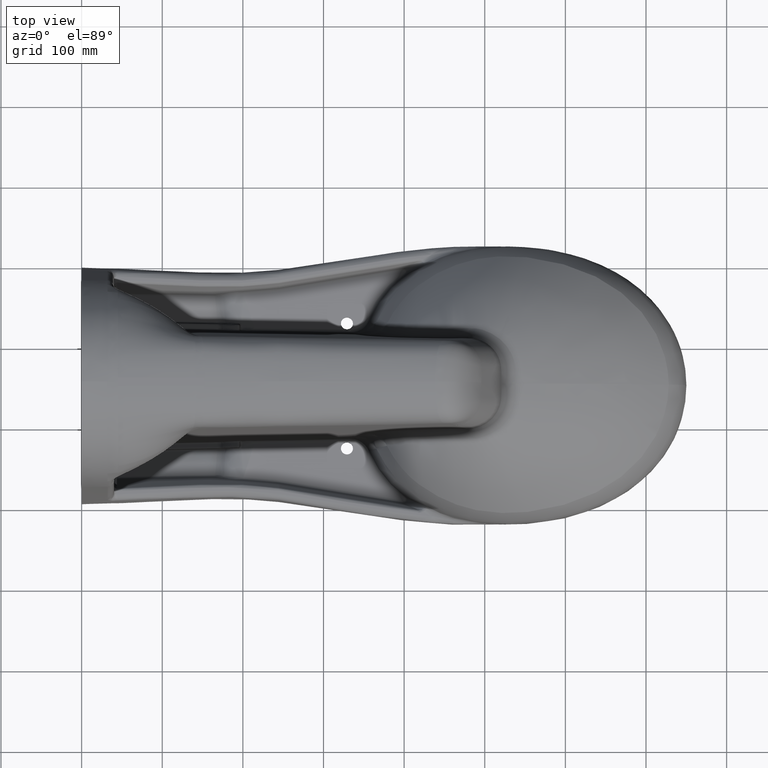
[diagram: clean part render]
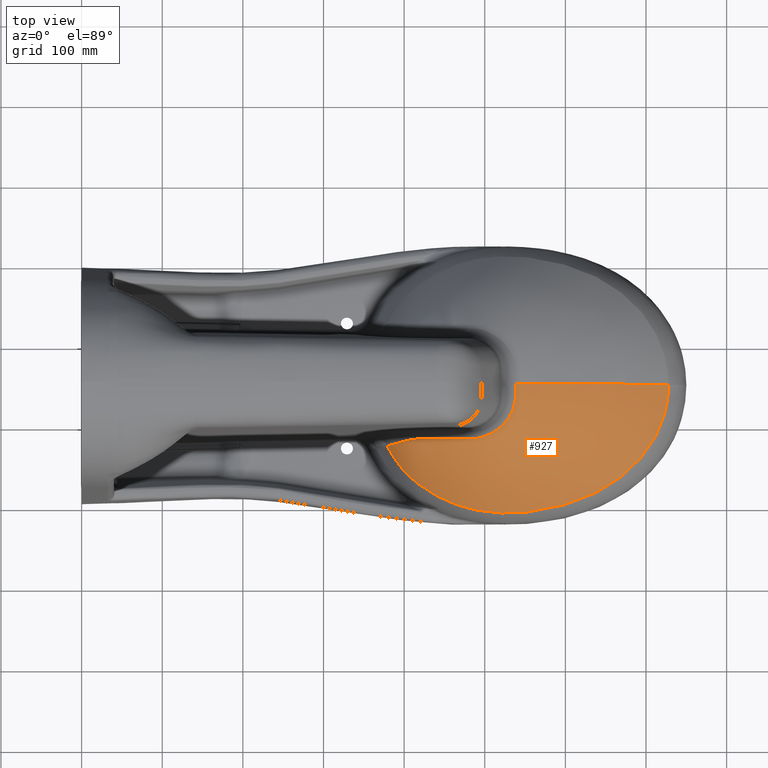
[diagram: same view with one face highlighted and labeled with its STEP entity id]
A machine part, top view. The second image highlights one B-rep face of the part: STEP entity #927.
In plain terms, the highlighted face is a freeform B-spline surface patch.
Its self-contained STEP definition (entity closure, byte-faithful):
#927=ADVANCED_FACE('',(#1509),#1158,.T.);
#1158=B_SPLINE_SURFACE_WITH_KNOTS('',3,3,((#45262,#45263,#45264,#45265,
#45266,#45267,#45268),(#45269,#45270,#45271,#45272,#45273,#45274,#45275),
(#45276,#45277,#45278,#45279,#45280,#45281,#45282),(#45283,#45284,#45285,
#45286,#45287,#45288,#45289),(#45290,#45291,#45292,#45293,#45294,#45295,
#45296),(#45297,#45298,#45299,#45300,#45301,#45302,#45303),(#45304,#45305,
#45306,#45307,#45308,#45309,#45310),(#45311,#45312,#45313,#45314,#45315,
#45316,#45317),(#45318,#45319,#45320,#45321,#45322,#45323,#45324),(#45325,
#45326,#45327,#45328,#45329,#45330,#45331),(#45332,#45333,#45334,#45335,
#45336,#45337,#45338),(#45339,#45340,#45341,#45342,#45343,#45344,#45345),
(#45346,#45347,#45348,#45349,#45350,#45351,#45352),(#45353,#45354,#45355,
#45356,#45357,#45358,#45359),(#45360,#45361,#45362,#45363,#45364,#45365,
#45366),(#45367,#45368,#45369,#45370,#45371,#45372,#45373),(#45374,#45375,
#45376,#45377,#45378,#45379,#45380),(#45381,#45382,#45383,#45384,#45385,
#45386,#45387),(#45388,#45389,#45390,#45391,#45392,#45393,#45394),(#45395,
#45396,#45397,#45398,#45399,#45400,#45401),(#45402,#45403,#45404,#45405,
#45406,#45407,#45408),(#45409,#45410,#45411,#45412,#45413,#45414,#45415),
(#45416,#45417,#45418,#45419,#45420,#45421,#45422),(#45423,#45424,#45425,
#45426,#45427,#45428,#45429),(#45430,#45431,#45432,#45433,#45434,#45435,
#45436),(#45437,#45438,#45439,#45440,#45441,#45442,#45443),(#45444,#45445,
#45446,#45447,#45448,#45449,#45450),(#45451,#45452,#45453,#45454,#45455,
#45456,#45457),(#45458,#45459,#45460,#45461,#45462,#45463,#45464),(#45465,
#45466,#45467,#45468,#45469,#45470,#45471),(#45472,#45473,#45474,#45475,
#45476,#45477,#45478),(#45479,#45480,#45481,#45482,#45483,#45484,#45485),
(#45486,#45487,#45488,#45489,#45490,#45491,#45492),(#45493,#45494,#45495,
#45496,#45497,#45498,#45499),(#45500,#45501,#45502,#45503,#45504,#45505,
#45506),(#45507,#45508,#45509,#45510,#45511,#45512,#45513),(#45514,#45515,
#45516,#45517,#45518,#45519,#45520),(#45521,#45522,#45523,#45524,#45525,
#45526,#45527),(#45528,#45529,#45530,#45531,#45532,#45533,#45534),(#45535,
#45536,#45537,#45538,#45539,#45540,#45541),(#45542,#45543,#45544,#45545,
#45546,#45547,#45548),(#45549,#45550,#45551,#45552,#45553,#45554,#45555),
(#45556,#45557,#45558,#45559,#45560,#45561,#45562),(#45563,#45564,#45565,
#45566,#45567,#45568,#45569),(#45570,#45571,#45572,#45573,#45574,#45575,
#45576),(#45577,#45578,#45579,#45580,#45581,#45582,#45583),(#45584,#45585,
#45586,#45587,#45588,#45589,#45590),(#45591,#45592,#45593,#45594,#45595,
#45596,#45597),(#45598,#45599,#45600,#45601,#45602,#45603,#45604),(#45605,
#45606,#45607,#45608,#45609,#45610,#45611),(#45612,#45613,#45614,#45615,
#45616,#45617,#45618),(#45619,#45620,#45621,#45622,#45623,#45624,#45625),
(#45626,#45627,#45628,#45629,#45630,#45631,#45632),(#45633,#45634,#45635,
#45636,#45637,#45638,#45639),(#45640,#45641,#45642,#45643,#45644,#45645,
#45646),(#45647,#45648,#45649,#45650,#45651,#45652,#45653),(#45654,#45655,
#45656,#45657,#45658,#45659,#45660),(#45661,#45662,#45663,#45664,#45665,
#45666,#45667),(#45668,#45669,#45670,#45671,#45672,#45673,#45674),(#45675,
#45676,#45677,#45678,#45679,#45680,#45681),(#45682,#45683,#45684,#45685,
#45686,#45687,#45688),(#45689,#45690,#45691,#45692,#45693,#45694,#45695),
(#45696,#45697,#45698,#45699,#45700,#45701,#45702),(#45703,#45704,#45705,
#45706,#45707,#45708,#45709),(#45710,#45711,#45712,#45713,#45714,#45715,
#45716),(#45717,#45718,#45719,#45720,#45721,#45722,#45723),(#45724,#45725,
#45726,#45727,#45728,#45729,#45730),(#45731,#45732,#45733,#45734,#45735,
#45736,#45737),(#45738,#45739,#45740,#45741,#45742,#45743,#45744),(#45745,
#45746,#45747,#45748,#45749,#45750,#45751),(#45752,#45753,#45754,#45755,
#45756,#45757,#45758),(#45759,#45760,#45761,#45762,#45763,#45764,#45765),
(#45766,#45767,#45768,#45769,#45770,#45771,#45772),(#45773,#45774,#45775,
#45776,#45777,#45778,#45779),(#45780,#45781,#45782,#45783,#45784,#45785,
#45786)),.UNSPECIFIED.,.F.,.F.,.F.,(4,1,1,1,1,1,1,1,1,1,1,1,1,1,1,1,1,1,
1,1,1,1,1,1,1,1,1,1,1,1,1,1,1,1,1,1,1,1,1,1,1,1,1,1,1,1,1,1,1,1,1,1,1,1,
1,1,1,1,1,1,1,1,1,1,1,1,1,1,1,1,1,1,4),(4,1,1,1,4),(0.,0.01171875,0.0234375,
0.046875,0.0703125,0.08203125,0.09375,0.1171875,0.12890625,0.134765625,
0.140625,0.1435546875,0.146484375,0.15234375,0.1640625,0.1875,0.2109375,
0.22265625,0.234375,0.25,0.2578125,0.28125,0.3046875,0.31640625,0.328125,
0.3515625,0.375,0.3984375,0.421875,0.4453125,0.462890625,0.46875,0.48046875,
0.4921875,0.498046875,0.5,0.50390625,0.515625,0.52734375,0.5390625,0.55078125,
0.5625,0.5859375,0.609375,0.6328125,0.65625,0.66796875,0.6796875,0.69140625,
0.703125,0.7265625,0.75,0.765625,0.78125,0.78515625,0.7890625,0.796875,
0.8125,0.84375,0.8515625,0.85546875,0.859375,0.861328125,0.8671875,0.875,
0.890625,0.90625,0.921875,0.9375,0.953125,0.96875,0.984375,1.),(0.,0.264705882352941,
0.509803921568627,0.754901960784314,1.),.UNSPECIFIED.);
#1509=FACE_OUTER_BOUND('',#1934,.T.);
#1934=EDGE_LOOP('',(#3543,#3544,#3545,#3546));
#3543=ORIENTED_EDGE('',*,*,#5205,.T.);
#3544=ORIENTED_EDGE('',*,*,#5504,.T.);
#3545=ORIENTED_EDGE('',*,*,#5508,.T.);
#3546=ORIENTED_EDGE('',*,*,#5518,.T.);
#4428=VERTEX_POINT('',#22494);
#4436=VERTEX_POINT('',#23260);
#4593=VERTEX_POINT('',#43614);
#4596=VERTEX_POINT('',#43935);
#5205=EDGE_CURVE('',#4436,#4428,#6105,.T.);
#5504=EDGE_CURVE('',#4428,#4593,#6316,.T.);
#5508=EDGE_CURVE('',#4593,#4596,#6319,.T.);
#5518=EDGE_CURVE('',#4596,#4436,#6328,.T.);
#6105=B_SPLINE_CURVE_WITH_KNOTS('',3,(#23635,#23636,#23637,#23638,#23639,
#23640,#23641),.UNSPECIFIED.,.F.,.F.,(4,1,1,1,4),(0.,0.161545937611615,
0.462555164888417,0.763564392165218,1.),.UNSPECIFIED.);
#6316=B_SPLINE_CURVE_WITH_KNOTS('',3,(#43615,#43616,#43617,#43618,#43619,
#43620,#43621,#43622,#43623,#43624,#43625,#43626,#43627,#43628,#43629,#43630,
#43631,#43632,#43633,#43634,#43635,#43636,#43637,#43638,#43639,#43640,#43641,
#43642,#43643,#43644,#43645,#43646,#43647,#43648,#43649,#43650,#43651,#43652,
#43653,#43654,#43655,#43656,#43657,#43658,#43659,#43660,#43661,#43662,#43663,
#43664,#43665,#43666,#43667,#43668,#43669,#43670,#43671,#43672,#43673,#43674,
#43675,#43676,#43677,#43678,#43679,#43680,#43681,#43682,#43683,#43684,#43685,
#43686,#43687,#43688,#43689,#43690,#43691,#43692,#43693,#43694,#43695,#43696,
#43697,#43698,#43699,#43700),.UNSPECIFIED.,.F.,.F.,(4,2,2,2,2,2,2,2,2,1,
2,2,2,2,2,2,1,2,2,2,2,2,2,2,2,2,2,2,2,1,1,1,2,2,2,2,2,2,2,2,2,2,1,2,2,4),
(0.,0.0625000000000183,0.0937500000000279,0.109375000000033,0.117187500000035,
0.125000000000037,0.187500000000052,0.21875000000006,0.234375000000064,
0.242187500000066,0.246093750000067,0.250000000000068,0.31250000000009,
0.3437500000001,0.359375000000106,0.367187500000108,0.37109375000011,0.37304687500011,
0.375000000000111,0.43750000000012,0.468750000000125,0.484375000000127,
0.492187500000128,0.500000000000129,0.562500000000142,0.593750000000149,
0.609375000000151,0.625000000000154,0.656250000000156,0.671875000000158,
0.67968750000016,0.683593750000163,0.685546875000164,0.687500000000165,
0.718750000000144,0.734375000000136,0.742187500000131,0.746093750000129,
0.750000000000127,0.812500000000099,0.843750000000086,0.859375000000078,
0.867187500000075,0.871093750000073,0.875000000000071,1.),.UNSPECIFIED.);
#6319=B_SPLINE_CURVE_WITH_KNOTS('',3,(#43936,#43937,#43938,#43939,#43940,
#43941,#43942,#43943,#43944,#43945,#43946,#43947,#43948,#43949,#43950,#43951,
#43952,#43953,#43954,#43955,#43956,#43957,#43958,#43959,#43960,#43961,#43962,
#43963,#43964,#43965,#43966,#43967,#43968,#43969,#43970,#43971,#43972,#43973,
#43974,#43975,#43976,#43977,#43978,#43979,#43980,#43981,#43982,#43983,#43984,
#43985,#43986,#43987,#43988,#43989,#43990,#43991,#43992,#43993,#43994,#43995,
#43996,#43997,#43998,#43999,#44000,#44001,#44002,#44003,#44004,#44005,#44006,
#44007),.UNSPECIFIED.,.F.,.F.,(4,2,2,2,1,1,2,2,2,2,2,1,1,2,2,2,2,2,2,2,
2,2,2,2,2,2,2,2,2,2,2,2,2,2,1,1,2,2,4),(0.,0.0625000000000084,0.0937500000000125,
0.109375000000014,0.117187500000014,0.121093750000014,0.123046875000014,
0.125000000000014,0.187500000000002,0.218749999999996,0.234374999999993,
0.242187499999991,0.246093749999991,0.248046874999991,0.24999999999999,
0.312499999999974,0.343749999999966,0.351562499999965,0.359374999999963,
0.37499999999996,0.437499999999953,0.468749999999949,0.484374999999946,
0.499999999999944,0.562499999999937,0.624999999999929,0.687499999999921,
0.718749999999918,0.734374999999916,0.742187499999915,0.749999999999915,
0.812499999999911,0.84374999999991,0.859374999999908,0.867187499999907,
0.871093749999908,0.873046874999909,0.87499999999991,1.),.UNSPECIFIED.);
#6328=B_SPLINE_CURVE_WITH_KNOTS('',3,(#44796,#44797,#44798,#44799,#44800,
#44801,#44802,#44803,#44804,#44805,#44806,#44807,#44808,#44809,#44810,#44811,
#44812,#44813,#44814,#44815,#44816,#44817,#44818,#44819,#44820,#44821,#44822,
#44823,#44824,#44825,#44826,#44827,#44828,#44829,#44830,#44831,#44832,#44833,
#44834,#44835,#44836,#44837,#44838,#44839,#44840,#44841,#44842,#44843,#44844,
#44845,#44846,#44847,#44848,#44849,#44850,#44851,#44852,#44853,#44854,#44855,
#44856,#44857,#44858,#44859,#44860,#44861,#44862,#44863,#44864,#44865,#44866,
#44867,#44868,#44869,#44870,#44871,#44872,#44873,#44874,#44875,#44876,#44877,
#44878,#44879,#44880,#44881,#44882,#44883,#44884,#44885,#44886,#44887,#44888,
#44889,#44890,#44891,#44892,#44893,#44894,#44895,#44896,#44897,#44898,#44899),
 .UNSPECIFIED.,.F.,.F.,(4,2,2,2,1,2,2,2,2,2,2,2,2,2,2,2,1,1,2,2,2,2,2,2,
1,1,2,2,2,2,2,2,1,2,2,2,2,2,2,1,1,1,2,2,2,2,2,2,2,1,2,2,2,2,2,2,4),(0.,
0.015624999999988,0.023437499999982,0.0273437499999789,0.0292968749999775,
0.0302734374999767,0.031249999999976,0.0468749999999618,0.0546874999999548,
0.0585937499999514,0.0605468749999496,0.0624999999999478,0.0937499999999171,
0.109374999999902,0.117187499999894,0.12109374999989,0.123046874999888,
0.124023437499887,0.124511718749887,0.124999999999886,0.156249999999852,
0.171874999999834,0.179687499999825,0.183593749999821,0.185546874999819,
0.186523437499818,0.187011718749817,0.187499999999817,0.218749999999791,
0.234374999999778,0.242187499999771,0.246093749999768,0.248046874999767,
0.249023437499766,0.249999999999765,0.312499999999739,0.343749999999726,
0.359374999999719,0.367187499999716,0.371093749999714,0.373046874999713,
0.374023437499713,0.374511718749713,0.374999999999713,0.437499999999752,
0.468749999999772,0.484374999999782,0.492187499999787,0.49609374999979,
0.498046874999791,0.499023437499792,0.499999999999793,0.624999999999845,
0.749999999999897,0.812499999999923,0.874999999999948,1.),.UNSPECIFIED.);
#22494=CARTESIAN_POINT('',(538.267688797543,153.525,195.697211263809));
#23260=CARTESIAN_POINT('',(728.012758415405,153.525,108.975013168029));
#23635=CARTESIAN_POINT('',(728.012389232513,153.524459950956,108.9745560275));
#23636=CARTESIAN_POINT('',(719.19235814967,153.524490135808,116.08706224505));
#23637=CARTESIAN_POINT('',(692.965951827557,153.52457917619,135.252651446628));
#23638=CARTESIAN_POINT('',(645.901551067401,153.524738229126,161.139103891217));
#23639=CARTESIAN_POINT('',(590.842450671173,153.524927761114,182.122076884891));
#23640=CARTESIAN_POINT('',(554.426782249626,153.525056022306,191.967185537663));
#23641=CARTESIAN_POINT('',(538.267688841407,153.525113482443,195.697211263815));
#43614=CARTESIAN_POINT('',(480.058245826521,84.9794481967518,189.225366084361));
#43615=CARTESIAN_POINT('',(538.267688797543,153.525,195.697211263809));
#43616=CARTESIAN_POINT('',(538.267563548294,150.894303522426,195.697004851268));
#43617=CARTESIAN_POINT('',(538.231043649266,148.513751834422,195.673658245534));
#43618=CARTESIAN_POINT('',(538.205433530636,145.280113651286,195.608510778653));
#43619=CARTESIAN_POINT('',(538.201766132594,144.258461294088,195.581740528477));
#43620=CARTESIAN_POINT('',(538.199423654271,142.8077418144,195.534352495731));
#43621=CARTESIAN_POINT('',(538.198947823471,142.337820430823,195.517349880091));
#43622=CARTESIAN_POINT('',(538.198300944168,141.653213104577,195.490070966557));
#43623=CARTESIAN_POINT('',(538.198102189762,141.428390285815,195.480682112324));
#43624=CARTESIAN_POINT('',(538.197760425938,140.985476062454,195.461317903711));
#43625=CARTESIAN_POINT('',(538.197639456234,140.738014342864,195.449938420066));
#43626=CARTESIAN_POINT('',(538.19810348305,139.069709988353,195.370180555016));
#43627=CARTESIAN_POINT('',(538.168744806013,137.280058455552,195.273294639005));
#43628=CARTESIAN_POINT('',(537.916290510936,134.10496650819,195.082593583233));
#43629=CARTESIAN_POINT('',(537.79729164446,132.964744414558,195.011432205926));
#43630=CARTESIAN_POINT('',(537.540020980277,131.129200208289,194.892169893084));
#43631=CARTESIAN_POINT('',(537.441010295757,130.496510715581,194.8503264887));
#43632=CARTESIAN_POINT('',(537.268595438545,129.516162189256,194.784262921705));
#43633=CARTESIAN_POINT('',(537.176408272029,129.018162149844,194.750406276797));
#43634=CARTESIAN_POINT('',(537.074453530743,128.508441722296,194.715279244672));
#43635=CARTESIAN_POINT('',(537.00422147241,128.166027772926,194.691575080671));
#43636=CARTESIAN_POINT('',(536.977868298079,128.039469261156,194.682789419671));
#43637=CARTESIAN_POINT('',(536.173460217934,124.303656157311,194.421845557233));
#43638=CARTESIAN_POINT('',(535.181500181746,121.51660901003,194.213771465424));
#43639=CARTESIAN_POINT('',(533.960714953408,118.488630682841,193.981947665508));
#43640=CARTESIAN_POINT('',(533.595531520477,117.669684562587,193.917955345584));
#43641=CARTESIAN_POINT('',(533.158588540564,116.725832092183,193.843794292512));
#43642=CARTESIAN_POINT('',(533.03118439413,116.458623862754,193.822703360288));
#43643=CARTESIAN_POINT('',(532.871409631089,116.128717649618,193.796668919653));
#43644=CARTESIAN_POINT('',(532.823359203767,116.030566249585,193.788923847974));
#43645=CARTESIAN_POINT('',(532.759462476319,115.901039880361,193.778720321963));
#43646=CARTESIAN_POINT('',(532.729557486698,115.840701916312,193.773972024545));
#43647=CARTESIAN_POINT('',(532.702774094779,115.786997523562,193.769756143118));
#43648=CARTESIAN_POINT('',(532.68561761479,115.752668292316,193.767064082342));
#43649=CARTESIAN_POINT('',(532.702355096121,115.785976807229,193.769667815709));
#43650=CARTESIAN_POINT('',(531.618549209755,113.626872223796,193.600777155173));
#43651=CARTESIAN_POINT('',(530.465662325186,111.689067642688,193.446447574234));
#43652=CARTESIAN_POINT('',(528.666902656054,109.026966682843,193.233085598043));
#43653=CARTESIAN_POINT('',(528.055759727626,108.18014150105,193.164993966857));
#43654=CARTESIAN_POINT('',(527.131192172588,106.970726050557,193.067731901672));
#43655=CARTESIAN_POINT('',(526.821685410954,106.577717390221,193.036122510606));
#43656=CARTESIAN_POINT('',(526.356584245806,106.003331501314,192.989964713485));
#43657=CARTESIAN_POINT('',(526.201410069038,105.814390261813,192.974788171402));
#43658=CARTESIAN_POINT('',(525.890966384557,105.441532838164,192.944860504509));
#43659=CARTESIAN_POINT('',(525.769063808658,105.296612812736,192.933233805115));
#43660=CARTESIAN_POINT('',(524.071730223043,103.312926798285,192.774298244228));
#43661=CARTESIAN_POINT('',(522.496336700445,101.70376071404,192.646700625008));
#43662=CARTESIAN_POINT('',(520.101206285469,99.5186674667613,192.479747347503));
#43663=CARTESIAN_POINT('',(519.297474763173,98.8285720057941,192.428296931188));
#43664=CARTESIAN_POINT('',(518.091812936963,97.8503390089841,192.358196832612));
#43665=CARTESIAN_POINT('',(517.689910855585,97.5337343713493,192.336009890275));
#43666=CARTESIAN_POINT('',(516.887376682812,96.9192121922476,192.294172004365));
#43667=CARTESIAN_POINT('',(516.512388487192,96.6398333085534,192.275696643617));
#43668=CARTESIAN_POINT('',(515.237332575071,95.7180521193933,192.217240892237));
#43669=CARTESIAN_POINT('',(514.364470184211,95.1161806669859,192.18043111426));
#43670=CARTESIAN_POINT('',(513.019996884422,94.2359773543205,192.127629804332));
#43671=CARTESIAN_POINT('',(512.338751356845,93.8019180097844,192.101527266591));
#43672=CARTESIAN_POINT('',(511.526990573204,93.3087066700763,192.069990610482));
#43673=CARTESIAN_POINT('',(511.116714620075,93.0657260781237,192.053750269287));
#43674=CARTESIAN_POINT('',(510.939923855084,92.9624034127271,192.046667419688));
#43675=CARTESIAN_POINT('',(510.821848594256,92.8937059495697,192.041915856021));
#43676=CARTESIAN_POINT('',(510.729696865071,92.8404193566403,192.038184634131));
#43677=CARTESIAN_POINT('',(510.283505251266,92.5831676927564,192.020062019931));
#43678=CARTESIAN_POINT('',(509.622180767151,92.1880203846278,191.985546985757));
#43679=CARTESIAN_POINT('',(508.220255691474,91.4081403584671,191.893897761703));
#43680=CARTESIAN_POINT('',(507.684286416531,91.1173320289523,191.856576851539));
#43681=CARTESIAN_POINT('',(506.768720892924,90.6438408871291,191.787149112569));
#43682=CARTESIAN_POINT('',(506.444913790545,90.4798268926966,191.761751708097));
#43683=CARTESIAN_POINT('',(505.930065248786,90.2259445922736,191.719719585841));
#43684=CARTESIAN_POINT('',(505.753591928826,90.140009086915,191.705051783746));
#43685=CARTESIAN_POINT('',(505.390720273539,89.9657845153413,191.674295714313));
#43686=CARTESIAN_POINT('',(505.168710897408,89.8608819755783,191.655072319352));
#43687=CARTESIAN_POINT('',(502.519127458685,88.6247840978773,191.421806236281));
#43688=CARTESIAN_POINT('',(500.186956117858,87.7933104191172,191.177679658557));
#43689=CARTESIAN_POINT('',(497.111638501027,86.8616172902206,190.845088416341));
#43690=CARTESIAN_POINT('',(496.155853538371,86.6044654190912,190.739473711625));
#43691=CARTESIAN_POINT('',(494.839979271753,86.2829753631407,190.594806755468));
#43692=CARTESIAN_POINT('',(494.420937263399,86.1865621638673,190.548858759078));
#43693=CARTESIAN_POINT('',(493.823062932617,86.0564521720116,190.483933241744));
#43694=CARTESIAN_POINT('',(493.531794010406,85.9950282776929,190.452468146641));
#43695=CARTESIAN_POINT('',(493.252240374194,85.9387800953688,190.42259663311));
#43696=CARTESIAN_POINT('',(493.068496171982,85.9024034867009,190.403046380639));
#43697=CARTESIAN_POINT('',(493.029924967362,85.8947267680614,190.398933255913));
#43698=CARTESIAN_POINT('',(488.369501239512,85.002718227445,189.907694219803));
#43699=CARTESIAN_POINT('',(484.030327912187,84.7835265576179,189.49880873562));
#43700=CARTESIAN_POINT('',(480.058245826521,84.9794481967516,189.225366084361));
#43935=CARTESIAN_POINT('',(378.583138586521,77.6332408042855,108.974891583055));
#43936=CARTESIAN_POINT('',(480.058245826521,84.9794481967516,189.225366084361));
#43937=CARTESIAN_POINT('',(477.373143487674,85.0424762961724,188.998911814384));
#43938=CARTESIAN_POINT('',(474.614717210787,85.0964463674113,188.687649543999));
#43939=CARTESIAN_POINT('',(470.339927393752,85.1695824266998,188.075703345651));
#43940=CARTESIAN_POINT('',(468.892198997063,85.1928123174733,187.847659557267));
#43941=CARTESIAN_POINT('',(466.684317423052,85.2253017630704,187.465405410919));
#43942=CARTESIAN_POINT('',(465.942317207027,85.2357336435426,187.331281260915));
#43943=CARTESIAN_POINT('',(464.8200662951,85.2506882291061,187.119489792814));
#43944=CARTESIAN_POINT('',(464.256628913973,85.2579921381661,187.010942542574));
#43945=CARTESIAN_POINT('',(463.595205406185,85.2661879315646,186.879542398632));
#43946=CARTESIAN_POINT('',(463.310860785788,85.2696282487768,186.822194543653));
#43947=CARTESIAN_POINT('',(463.121102392481,85.2719054843486,186.783731508213));
#43948=CARTESIAN_POINT('',(462.97961603642,85.2735849018951,186.75486314823));
#43949=CARTESIAN_POINT('',(461.376965419183,85.2925010744222,186.426773635998));
#43950=CARTESIAN_POINT('',(459.224946957705,85.3051455777849,185.966729013855));
#43951=CARTESIAN_POINT('',(455.066667942458,85.2996793281842,184.848634969035));
#43952=CARTESIAN_POINT('',(453.525564609139,85.2932079701966,184.402996312247));
#43953=CARTESIAN_POINT('',(450.977647920866,85.280186971238,183.607141571046));
#43954=CARTESIAN_POINT('',(450.088982930357,85.275307567245,183.320649156174));
#43955=CARTESIAN_POINT('',(448.69664184603,85.2675086616319,182.856278607262));
#43956=CARTESIAN_POINT('',(447.985637954152,85.2634895012444,182.615436283158));
#43957=CARTESIAN_POINT('',(447.130138787882,85.25866491343,182.318702336969));
#43958=CARTESIAN_POINT('',(446.75792432224,85.2565761848556,182.188092388873));
#43959=CARTESIAN_POINT('',(446.50854301355,85.2551799109491,182.100248092757));
#43960=CARTESIAN_POINT('',(446.34687181206,85.2542773308773,182.043034522486));
#43961=CARTESIAN_POINT('',(443.391139531383,85.2378126002841,180.993942135252));
#43962=CARTESIAN_POINT('',(440.637017986191,85.2228617163023,179.930481022373));
#43963=CARTESIAN_POINT('',(436.693701757333,85.1999332341211,178.310188625128));
#43964=CARTESIAN_POINT('',(435.410592808574,85.1922379317031,177.765501282064));
#43965=CARTESIAN_POINT('',(433.84746667655,85.1824180932989,177.082254327291));
#43966=CARTESIAN_POINT('',(433.606635921295,85.1808605514074,176.976715639628));
#43967=CARTESIAN_POINT('',(432.636788650893,85.174716665627,176.545909733059));
#43968=CARTESIAN_POINT('',(432.160558844559,85.1717817727173,176.332024323802));
#43969=CARTESIAN_POINT('',(430.758093549989,85.1633221948329,175.695649544874));
#43970=CARTESIAN_POINT('',(429.858093284038,85.1581419654246,175.278452797112));
#43971=CARTESIAN_POINT('',(425.534140414265,85.1336959968283,173.236765776563));
#43972=CARTESIAN_POINT('',(422.640386357526,85.1185636882991,171.748481886146));
#43973=CARTESIAN_POINT('',(419.138752758587,85.0889433436038,169.866279860537));
#43974=CARTESIAN_POINT('',(418.110934274561,85.0779782863793,169.296584529698));
#43975=CARTESIAN_POINT('',(416.775247990837,85.0585358894525,168.539639771254));
#43976=CARTESIAN_POINT('',(416.364422064351,85.051549789032,168.303452104198));
#43977=CARTESIAN_POINT('',(415.61131350852,85.0363323509074,167.864377867848));
#43978=CARTESIAN_POINT('',(415.299894484497,85.0289977940309,167.680091909102));
#43979=CARTESIAN_POINT('',(413.604044777136,84.9797995745976,166.659290103186));
#43980=CARTESIAN_POINT('',(412.005238011151,84.8232648610242,165.589421114444));
#43981=CARTESIAN_POINT('',(408.53063228643,84.3049390703475,162.68846350128));
#43982=CARTESIAN_POINT('',(406.652722376497,83.9432215116882,160.85945039215));
#43983=CARTESIAN_POINT('',(402.805254567771,83.0833667551271,156.394760082382));
#43984=CARTESIAN_POINT('',(400.843941999992,82.5848935738705,153.757926376582));
#43985=CARTESIAN_POINT('',(397.930561892773,81.8156550667767,149.262417575628));
#43986=CARTESIAN_POINT('',(396.963834787231,81.5560116328155,147.675686579698));
#43987=CARTESIAN_POINT('',(395.523391661722,81.1752270235024,145.182777754059));
#43988=CARTESIAN_POINT('',(395.044716125942,81.0497656314706,144.332940195794));
#43989=CARTESIAN_POINT('',(394.328432223317,80.8656937828722,143.03256294412));
#43990=CARTESIAN_POINT('',(394.089954639172,80.8050250212282,142.594838880717));
#43991=CARTESIAN_POINT('',(393.613431277878,80.685407117094,141.711370600437));
#43992=CARTESIAN_POINT('',(393.361929447295,80.6231826747366,141.240204821212));
#43993=CARTESIAN_POINT('',(391.341781551518,80.1314686855798,137.423696264192));
#43994=CARTESIAN_POINT('',(389.864944648847,79.8099181110687,134.418157158435));
#43995=CARTESIAN_POINT('',(387.973200825838,79.4329811853619,130.501592043078));
#43996=CARTESIAN_POINT('',(387.398340515938,79.3247914810483,129.293235836119));
#43997=CARTESIAN_POINT('',(386.610394629991,79.1797368046418,127.621207838896));
#43998=CARTESIAN_POINT('',(386.360152087041,79.1342567225486,127.087274287924));
#43999=CARTESIAN_POINT('',(386.002832090758,79.0692195645766,126.320569523736));
#44000=CARTESIAN_POINT('',(385.828693292472,79.037496647384,125.945761586474));
#44001=CARTESIAN_POINT('',(385.633354156495,79.0016348114839,125.523225425466));
#44002=CARTESIAN_POINT('',(385.551304316451,78.9864855466574,125.345274408642));
#44003=CARTESIAN_POINT('',(385.496973817663,78.9764320693423,125.227334761154));
#44004=CARTESIAN_POINT('',(385.48930671375,78.9750192189694,125.210714981545));
#44005=CARTESIAN_POINT('',(382.492168496404,78.4177732524741,118.692542738262));
#44006=CARTESIAN_POINT('',(380.29290168084,77.9320931621553,113.306817642225));
#44007=CARTESIAN_POINT('',(378.586312415308,77.6261564494379,108.974995312655));
#44796=CARTESIAN_POINT('',(378.582806294267,77.633072119355,108.974990711691));
#44797=CARTESIAN_POINT('',(379.553257778124,75.7187444547969,108.976258395767));
#44798=CARTESIAN_POINT('',(380.646058495902,73.6908665795301,108.981161695203));
#44799=CARTESIAN_POINT('',(382.472688259343,70.5159317081523,108.980609332722));
#44800=CARTESIAN_POINT('',(383.112699270849,69.4357725318441,108.979391820429));
#44801=CARTESIAN_POINT('',(384.118863867905,67.7898254847572,108.977155141194));
#44802=CARTESIAN_POINT('',(384.461929533595,67.2369054244792,108.976363184551));
#44803=CARTESIAN_POINT('',(384.987876701113,66.4020951048529,108.975451179913));
#44804=CARTESIAN_POINT('',(385.25368715418,65.9833332796986,108.975066019209));
#44805=CARTESIAN_POINT('',(385.523719078401,65.5627265487288,108.974868862155));
#44806=CARTESIAN_POINT('',(385.704674561557,65.2819336056156,108.974789468472));
#44807=CARTESIAN_POINT('',(385.818149672676,65.1066455978562,108.974780071983));
#44808=CARTESIAN_POINT('',(386.989104937726,63.3033388774868,108.975005149178));
#44809=CARTESIAN_POINT('',(388.183767945588,61.5396976404664,108.977570644018));
#44810=CARTESIAN_POINT('',(390.113682624619,58.8156489105222,108.979971993956));
#44811=CARTESIAN_POINT('',(390.779856591603,57.8945707720925,108.980661639622));
#44812=CARTESIAN_POINT('',(391.814849223132,56.496310020022,108.981099983035));
#44813=CARTESIAN_POINT('',(392.165806227987,56.0274500939434,108.981151353825));
#44814=CARTESIAN_POINT('',(392.701386146036,55.3203688368824,108.98108050322));
#44815=CARTESIAN_POINT('',(392.881437018276,55.0840431416299,108.981032587477));
#44816=CARTESIAN_POINT('',(393.244623493293,54.6101883101372,108.980891461362));
#44817=CARTESIAN_POINT('',(393.44569808553,54.349533211604,108.980787297492));
#44818=CARTESIAN_POINT('',(396.280581291806,50.6949562949552,108.979056456831));
#44819=CARTESIAN_POINT('',(399.258515734084,47.1414482159737,108.975616027343));
#44820=CARTESIAN_POINT('',(404.386777832122,41.7597658104278,108.980541911403));
#44821=CARTESIAN_POINT('',(406.208066126108,39.9569087586678,108.983731749163));
#44822=CARTESIAN_POINT('',(409.149923707167,37.2492574375724,108.986821855979));
#44823=CARTESIAN_POINT('',(410.165945158679,36.3460440200008,108.987632562309));
#44824=CARTESIAN_POINT('',(411.747696081452,34.9912673297281,108.987376287432));
#44825=CARTESIAN_POINT('',(412.284560167558,34.5396802080655,108.987038664016));
#44826=CARTESIAN_POINT('',(413.104948527153,33.8624154325956,108.985964443246));
#44827=CARTESIAN_POINT('',(413.518919038191,33.5238126607147,108.98528526366));
#44828=CARTESIAN_POINT('',(414.008664072553,33.1288526668053,108.984198184474));
#44829=CARTESIAN_POINT('',(414.220026839618,32.9596029315822,108.983663716209));
#44830=CARTESIAN_POINT('',(414.361264642909,32.8467742229905,108.983291545241));
#44831=CARTESIAN_POINT('',(414.461517234585,32.7669320865739,108.983013522489));
#44832=CARTESIAN_POINT('',(417.157733051144,30.6232470290589,108.975327254087));
#44833=CARTESIAN_POINT('',(420.360313675497,28.2375992544127,108.947462741449));
#44834=CARTESIAN_POINT('',(426.165913353298,24.2681230215682,108.95517047772));
#44835=CARTESIAN_POINT('',(428.273669942086,22.8790806086161,108.960749624669));
#44836=CARTESIAN_POINT('',(431.752672543457,20.7027751077483,108.967796665751));
#44837=CARTESIAN_POINT('',(432.965439675482,19.9619030952064,108.969929398226));
#44838=CARTESIAN_POINT('',(434.873619472961,18.8283909863359,108.972110270042));
#44839=CARTESIAN_POINT('',(435.524533101495,18.4468543110381,108.972667769706));
#44840=CARTESIAN_POINT('',(436.524503490162,17.8691319306788,108.973165301148));
#44841=CARTESIAN_POINT('',(437.03039026106,17.5789165333865,108.973329409977));
#44842=CARTESIAN_POINT('',(437.631225085616,17.2379922670102,108.973354466239));
#44843=CARTESIAN_POINT('',(437.891038250479,17.0913838483763,108.973327605744));
#44844=CARTESIAN_POINT('',(438.064764720189,16.993534604572,108.973301128179));
#44845=CARTESIAN_POINT('',(438.187617265925,16.9245047420102,108.973274642377));
#44846=CARTESIAN_POINT('',(441.545021427863,15.0405030637271,108.972432558827));
#44847=CARTESIAN_POINT('',(445.154827696532,13.1461020854681,108.975015852162));
#44848=CARTESIAN_POINT('',(451.176402104104,10.2910604540342,108.978400983927));
#44849=CARTESIAN_POINT('',(453.285232613043,9.33748050457092,108.979588430862));
#44850=CARTESIAN_POINT('',(456.623766439629,7.91355316654925,108.978658195752));
#44851=CARTESIAN_POINT('',(457.765831139721,7.43995394343371,108.977768879878));
#44852=CARTESIAN_POINT('',(459.52604752867,6.73298423592531,108.975969606003));
#44853=CARTESIAN_POINT('',(460.120665564862,6.49788878057921,108.975285882985));
#44854=CARTESIAN_POINT('',(461.024599744457,6.14654409572013,108.974389470751));
#44855=CARTESIAN_POINT('',(461.479566855146,5.97119806365697,108.973974961686));
#44856=CARTESIAN_POINT('',(461.939064949447,5.79643323053647,108.973663111611));
#44857=CARTESIAN_POINT('',(462.246407327003,5.68006288087829,108.973483900104));
#44858=CARTESIAN_POINT('',(462.444843883349,5.60533998756848,108.973391847521));
#44859=CARTESIAN_POINT('',(469.622344140771,2.91214338762324,108.97061735145));
#44860=CARTESIAN_POINT('',(477.926522159814,0.306075343935033,108.962505760987));
#44861=CARTESIAN_POINT('',(492.639020998902,-2.77887638046711,108.9631042332));
#44862=CARTESIAN_POINT('',(497.918920597232,-3.6657479089791,108.965416091448));
#44863=CARTESIAN_POINT('',(506.421253030733,-4.68254235038532,108.969434166191));
#44864=CARTESIAN_POINT('',(509.352308642802,-4.96900135562316,108.970859789123));
#44865=CARTESIAN_POINT('',(513.89528942544,-5.30537769107,108.972739628587));
#44866=CARTESIAN_POINT('',(515.433992524903,-5.40197283223393,108.973319349933));
#44867=CARTESIAN_POINT('',(517.778512409559,-5.52196620392589,108.974034332512));
#44868=CARTESIAN_POINT('',(518.959887518455,-5.57573712291586,108.974353107936));
#44869=CARTESIAN_POINT('',(520.354076051292,-5.62721396136349,108.974638122611));
#44870=CARTESIAN_POINT('',(521.055144525198,-5.65009255138456,108.974756462029));
#44871=CARTESIAN_POINT('',(521.356453479665,-5.65927990959195,108.974801736778));
#44872=CARTESIAN_POINT('',(521.557515168438,-5.66526698691429,108.974830681178));
#44873=CARTESIAN_POINT('',(521.707078418391,-5.66957901359919,108.97485095672));
#44874=CARTESIAN_POINT('',(528.386954313196,-5.85895528579225,108.975727638786));
#44875=CARTESIAN_POINT('',(536.435325782579,-5.78186899877983,108.983141335716));
#44876=CARTESIAN_POINT('',(550.878825502299,-4.61657648876868,108.981262353928));
#44877=CARTESIAN_POINT('',(556.086062507233,-4.05015547712382,108.978389199239));
#44878=CARTESIAN_POINT('',(564.511395284107,-2.84496260962997,108.975486192224));
#44879=CARTESIAN_POINT('',(567.422445008062,-2.38424541326809,108.974984494434));
#44880=CARTESIAN_POINT('',(571.944054997685,-1.59103599223855,108.974782051585));
#44881=CARTESIAN_POINT('',(573.477075220413,-1.30958310036977,108.974796022635));
#44882=CARTESIAN_POINT('',(575.815329172266,-0.859974498607408,108.974888924652));
#44883=CARTESIAN_POINT('',(576.601200230317,-0.705532648747712,108.974931821663));
#44884=CARTESIAN_POINT('',(577.789678151066,-0.466772534517731,108.975007219547));
#44885=CARTESIAN_POINT('',(578.386335084158,-0.345619590109264,108.975047649145));
#44886=CARTESIAN_POINT('',(578.98661431778,-0.221746279896633,108.975091108584));
#44887=CARTESIAN_POINT('',(579.387604784556,-0.138552241823297,108.975120640726));
#44888=CARTESIAN_POINT('',(579.640018959571,-0.0858463194305785,108.975139592332));
#44889=CARTESIAN_POINT('',(598.961957284738,3.96595212110746,108.976604796004));
#44890=CARTESIAN_POINT('',(618.218618498041,10.0496584917468,108.981834427898));
#44891=CARTESIAN_POINT('',(654.249390149983,27.6295611382241,108.988181641926));
#44892=CARTESIAN_POINT('',(670.9404374998,39.220748396403,108.989529243806));
#44893=CARTESIAN_POINT('',(691.845908482742,60.1215752533767,108.98799979233));
#44894=CARTESIAN_POINT('',(698.125843159661,67.6527720389977,108.986968378423));
#44895=CARTESIAN_POINT('',(708.986467577071,83.5968597933485,108.984308638156));
#44896=CARTESIAN_POINT('',(713.546139698442,92.014360882155,108.9826835354));
#44897=CARTESIAN_POINT('',(724.406093024742,117.96047441245,108.977880355269));
#44898=CARTESIAN_POINT('',(727.994666316428,136.124653459142,108.974771235384));
#44899=CARTESIAN_POINT('',(728.012115568195,153.525000644734,108.974777149609));
#45262=CARTESIAN_POINT('',(366.2049053656,216.029987631569,89.6953540145067));
#45263=CARTESIAN_POINT('',(366.2049053656,216.029987631569,89.6953540145067));
#45264=CARTESIAN_POINT('',(366.2049053656,216.029987631569,89.6953540145067));
#45265=CARTESIAN_POINT('',(366.2049053656,216.029987631569,89.6953540145067));
#45266=CARTESIAN_POINT('',(366.2049053656,216.029987631569,89.6953540145067));
#45267=CARTESIAN_POINT('',(366.2049053656,216.029987631569,89.6953540145067));
#45268=CARTESIAN_POINT('',(366.2049053656,216.029987631569,89.6953540145067));
#45269=CARTESIAN_POINT('',(366.927048666105,215.849482927535,92.1283685262694));
#45270=CARTESIAN_POINT('',(366.92512834585,216.138713347238,91.9465633585724));
#45271=CARTESIAN_POINT('',(366.930238499447,216.684376263098,91.5777830309155));
#45272=CARTESIAN_POINT('',(366.958297548513,217.45472128773,90.9760921884028));
#45273=CARTESIAN_POINT('',(366.999791639612,218.164966697291,90.3319650956671));
#45274=CARTESIAN_POINT('',(367.03061673053,218.613774075089,89.8656412964504));
#45275=CARTESIAN_POINT('',(367.045190341936,218.831875572033,89.623619662481));
#45276=CARTESIAN_POINT('',(368.397151395465,215.489739789945,96.953387278595));
#45277=CARTESIAN_POINT('',(368.4271354662,216.355193391498,96.425205384885));
#45278=CARTESIAN_POINT('',(368.510051554543,217.986571776072,95.3505179237018));
#45279=CARTESIAN_POINT('',(368.692374333396,220.282955356869,93.5888749943657));
#45280=CARTESIAN_POINT('',(368.91266577805,222.391352924759,91.69845923253));
#45281=CARTESIAN_POINT('',(369.071339082868,223.715762548217,90.3289302177085));
#45282=CARTESIAN_POINT('',(369.149320789611,224.357185988394,89.6184057077655));
#45283=CARTESIAN_POINT('',(371.516023789581,214.770816421871,106.544878891313));
#45284=CARTESIAN_POINT('',(371.661355346266,216.776376191494,105.335742240002));
#45285=CARTESIAN_POINT('',(371.994311973807,220.550863084191,102.86637765187));
#45286=CARTESIAN_POINT('',(372.617066673933,225.834852051327,98.7974592554236));
#45287=CARTESIAN_POINT('',(373.323141710899,230.647963898708,94.425173372951));
#45288=CARTESIAN_POINT('',(373.83053311912,233.636919233517,91.2612792717037));
#45289=CARTESIAN_POINT('',(374.085791690912,235.074913229777,89.6226399882912));
#45290=CARTESIAN_POINT('',(375.861917117926,213.871299856224,118.602789360176));
#45291=CARTESIAN_POINT('',(376.207462878071,217.243142062813,116.545130233871));
#45292=CARTESIAN_POINT('',(376.952187965957,223.575843851503,112.328143313474));
#45293=CARTESIAN_POINT('',(378.257189582498,232.378735044779,105.346810736755));
#45294=CARTESIAN_POINT('',(379.696098761903,240.315269916029,97.841147725079));
#45295=CARTESIAN_POINT('',(380.734043920876,245.170666028276,92.4210159898711));
#45296=CARTESIAN_POINT('',(381.264324598198,247.486023729929,89.620204745347));
#45297=CARTESIAN_POINT('',(381.108322486251,212.964527744226,131.225477353306));
#45298=CARTESIAN_POINT('',(381.599649130407,217.533414422117,128.280597030608));
#45299=CARTESIAN_POINT('',(382.640697232875,226.091854064428,122.231708192768));
#45300=CARTESIAN_POINT('',(384.435764215031,237.88631347356,112.188947274157));
#45301=CARTESIAN_POINT('',(386.411039542198,248.386737109888,101.398909972684));
#45302=CARTESIAN_POINT('',(387.854426441979,254.693165690649,93.6269866697826));
#45303=CARTESIAN_POINT('',(388.601815890865,257.666987409884,89.6203335416092));
#45304=CARTESIAN_POINT('',(385.956954212893,212.23742990857,141.444160707993));
#45305=CARTESIAN_POINT('',(386.51280075139,217.688201080954,137.784450037499));
#45306=CARTESIAN_POINT('',(387.684777407417,227.879358902314,130.256144766624));
#45307=CARTESIAN_POINT('',(389.701431973736,241.835628930806,117.732197933599));
#45308=CARTESIAN_POINT('',(391.930774479655,254.144626822799,104.279190225305));
#45309=CARTESIAN_POINT('',(393.58013518015,261.433403492899,94.6023899918459));
#45310=CARTESIAN_POINT('',(394.442714684754,264.840305890513,89.6205802567947));
#45311=CARTESIAN_POINT('',(391.118151281034,211.501067862712,151.71141078228));
#45312=CARTESIAN_POINT('',(391.718575694567,217.793590475807,147.335977244558));
#45313=CARTESIAN_POINT('',(392.979416384933,229.539499508733,138.324323914249));
#45314=CARTESIAN_POINT('',(395.146306507047,245.536652025457,123.306744342561));
#45315=CARTESIAN_POINT('',(397.553084411394,259.528512145239,107.175553370611));
#45316=CARTESIAN_POINT('',(399.354461962791,267.707519265498,95.582915774294));
#45317=CARTESIAN_POINT('',(400.305017348437,271.499231035622,89.6208865455912));
#45318=CARTESIAN_POINT('',(397.206810841438,210.775212918915,161.736108833389));
#45319=CARTESIAN_POINT('',(397.786189360667,217.859132603226,156.670930520031));
#45320=CARTESIAN_POINT('',(399.004314413127,231.062774155919,146.223485353083));
#45321=CARTESIAN_POINT('',(401.112719293152,248.953195225129,128.774285957492));
#45322=CARTESIAN_POINT('',(403.481222649175,264.477467437974,110.020305957486));
#45323=CARTESIAN_POINT('',(405.283898897146,273.43826277133,96.5461012652197));
#45324=CARTESIAN_POINT('',(406.245671152929,277.558376929544,89.6210009262086));
#45325=CARTESIAN_POINT('',(404.171230659859,210.224991908758,169.256584170034));
#45326=CARTESIAN_POINT('',(404.61999814201,217.964541022478,163.70142981404));
#45327=CARTESIAN_POINT('',(405.580635406534,232.374405278959,152.215666641201));
#45328=CARTESIAN_POINT('',(407.299285309338,251.822833199273,132.956929926558));
#45329=CARTESIAN_POINT('',(409.290659121676,268.595217201511,112.2128400394));
#45330=CARTESIAN_POINT('',(410.854767482607,278.178684310852,97.2906526534484));
#45331=CARTESIAN_POINT('',(411.703446262317,282.555523981931,89.6209986418944));
#45332=CARTESIAN_POINT('',(408.671016608078,209.952166958071,172.944480140329));
#45333=CARTESIAN_POINT('',(409.01183079762,218.055493378425,167.163901423315));
#45334=CARTESIAN_POINT('',(409.760085107558,233.134414613693,155.189909578232));
#45335=CARTESIAN_POINT('',(411.155717555929,253.445411204021,135.051820557467));
#45336=CARTESIAN_POINT('',(412.829507865043,270.906246179666,113.319644200897));
#45337=CARTESIAN_POINT('',(414.185553991342,280.830228066092,97.6677125399884));
#45338=CARTESIAN_POINT('',(414.932604292206,285.346422378243,89.6209802448954));
#45339=CARTESIAN_POINT('',(411.685417940788,209.802118757189,174.948199799131));
#45340=CARTESIAN_POINT('',(411.946905132227,218.1282060963,169.053608802223));
#45341=CARTESIAN_POINT('',(412.539151947464,233.616778592768,156.826288575526));
#45342=CARTESIAN_POINT('',(413.69689367214,254.455423143953,136.215012057331));
#45343=CARTESIAN_POINT('',(415.135208147525,272.336587323189,113.93904673291));
#45344=CARTESIAN_POINT('',(416.33488720824,282.467483534344,97.8794027385262));
#45345=CARTESIAN_POINT('',(417.004728304727,287.068006120489,89.6209634192895));
#45346=CARTESIAN_POINT('',(414.187346507584,209.693778418718,176.377957439077));
#45347=CARTESIAN_POINT('',(414.381443423901,218.195444747902,170.407605511149));
#45348=CARTESIAN_POINT('',(414.841066667913,234.006913718248,158.007432122143));
#45349=CARTESIAN_POINT('',(415.795980835706,255.261351618601,137.06160388339));
#45350=CARTESIAN_POINT('',(417.032521353474,273.473505782858,114.393056361538));
#45351=CARTESIAN_POINT('',(418.097093961409,283.766989555271,98.0350177588366));
#45352=CARTESIAN_POINT('',(418.699812202358,288.433649410614,89.6209480915898));
#45353=CARTESIAN_POINT('',(416.705616876079,209.588449737246,177.761234617637));
#45354=CARTESIAN_POINT('',(416.833751002851,218.264386818193,171.719327895208));
#45355=CARTESIAN_POINT('',(417.163335472646,234.396402908786,159.154448249685));
#45356=CARTESIAN_POINT('',(417.9186206301,256.063745726014,137.886052737248));
#45357=CARTESIAN_POINT('',(418.9556825845,274.604722381297,114.836321292957));
#45358=CARTESIAN_POINT('',(419.885929210493,285.059774867233,98.1871226482256));
#45359=CARTESIAN_POINT('',(420.421671203568,289.792172101409,89.6209319614103));
#45360=CARTESIAN_POINT('',(421.126413386202,209.40917630326,180.100505054309));
#45361=CARTESIAN_POINT('',(421.145846823856,218.386934613611,173.940827660213));
#45362=CARTESIAN_POINT('',(421.260409375577,235.074309875527,161.102204967542));
#45363=CARTESIAN_POINT('',(421.683262627386,257.457612962692,139.290611215394));
#45364=CARTESIAN_POINT('',(422.385517033135,276.569415854252,115.593817487051));
#45365=CARTESIAN_POINT('',(423.088173635714,287.305375000135,98.4474331034705));
#45366=CARTESIAN_POINT('',(423.509779282581,292.1522118551,89.6209026639434));
#45367=CARTESIAN_POINT('',(430.027404826054,209.074624640356,184.39557731742));
#45368=CARTESIAN_POINT('',(429.859734478612,218.642946114718,178.035137224564));
#45369=CARTESIAN_POINT('',(429.600973806882,236.4179557211,164.716771352579));
#45370=CARTESIAN_POINT('',(429.436255856546,260.206595766136,141.918762951619));
#45371=CARTESIAN_POINT('',(429.535008019519,280.442651958069,117.022220528896));
#45372=CARTESIAN_POINT('',(429.817831285436,291.734717781789,98.9400872492681));
#45373=CARTESIAN_POINT('',(430.025936158772,296.809102379947,89.6208540140811));
#45374=CARTESIAN_POINT('',(442.660627421207,208.653092615892,189.585359591951));
#45375=CARTESIAN_POINT('',(442.354573566703,219.02909233731,183.023675322262));
#45376=CARTESIAN_POINT('',(441.806469184078,238.295793606656,169.187974528921));
#45377=CARTESIAN_POINT('',(441.144142202132,264.027183917967,145.230561049854));
#45378=CARTESIAN_POINT('',(440.685304573587,285.836916949752,118.854298714856));
#45379=CARTESIAN_POINT('',(440.543204948355,297.924060792289,99.5774593922721));
#45380=CARTESIAN_POINT('',(440.52413042801,303.329597692929,89.6208250485872));
#45381=CARTESIAN_POINT('',(454.807584657388,208.300644319937,193.401624193373));
#45382=CARTESIAN_POINT('',(454.62590543751,219.422434085148,186.761041408247));
#45383=CARTESIAN_POINT('',(454.289766102924,240.074509905051,172.650753516899));
#45384=CARTESIAN_POINT('',(453.84521130933,267.641485635284,147.899785174163));
#45385=CARTESIAN_POINT('',(453.482087782319,290.978956997758,120.38681776119));
#45386=CARTESIAN_POINT('',(453.304310272485,303.874613389583,100.120431154413));
#45387=CARTESIAN_POINT('',(453.23639385102,309.629481595189,89.6208272423946));
#45388=CARTESIAN_POINT('',(464.03334447744,208.107895559701,195.258416631349));
#45389=CARTESIAN_POINT('',(464.164716997638,219.760645445508,188.659977889841));
#45390=CARTESIAN_POINT('',(464.407175416762,241.404207876838,174.538707054371));
#45391=CARTESIAN_POINT('',(464.725775460547,270.305366409668,149.468810964957));
#45392=CARTESIAN_POINT('',(464.983343853947,294.779730548606,121.34544242538));
#45393=CARTESIAN_POINT('',(465.1067808184,308.300412410383,100.469753072888));
#45394=CARTESIAN_POINT('',(465.152805492424,314.33299614463,89.6208268551407));
#45395=CARTESIAN_POINT('',(471.31630009386,207.679893637349,196.567388930102));
#45396=CARTESIAN_POINT('',(471.843113882874,219.754029081181,190.024671758878));
#45397=CARTESIAN_POINT('',(472.825806562629,242.189138855678,175.937704200383));
#45398=CARTESIAN_POINT('',(474.153054183691,272.174608247282,150.671066153814));
#45399=CARTESIAN_POINT('',(475.273520770654,297.597765338289,122.101200624105));
#45400=CARTESIAN_POINT('',(475.85862964272,311.662113835533,100.748981074835));
#45401=CARTESIAN_POINT('',(476.097762842125,317.943241900534,89.620826794603));
#45402=CARTESIAN_POINT('',(477.444159421665,206.99166055189,197.531690861138));
#45403=CARTESIAN_POINT('',(478.464671913726,219.408078173939,191.057249539095));
#45404=CARTESIAN_POINT('',(480.377995118852,242.491160049623,177.040524719112));
#45405=CARTESIAN_POINT('',(482.994474704571,273.384659658069,151.660926760386));
#45406=CARTESIAN_POINT('',(485.243875362586,299.628271176831,122.746117595169));
#45407=CARTESIAN_POINT('',(486.457085876196,314.185119892906,100.9913854024));
#45408=CARTESIAN_POINT('',(486.968173894171,320.698192935315,89.6208266525952));
#45409=CARTESIAN_POINT('',(485.115576659677,205.693621918554,198.60470795978));
#45410=CARTESIAN_POINT('',(486.945738950572,218.508219260636,192.238795688704));
#45411=CARTESIAN_POINT('',(490.390604314932,242.351782813769,178.355267515871));
#45412=CARTESIAN_POINT('',(495.14473034886,274.338024839742,152.891606317341));
#45413=CARTESIAN_POINT('',(499.283690804626,301.602601551529,123.575030949639));
#45414=CARTESIAN_POINT('',(501.562790926717,316.800460064333,101.307891007591));
#45415=CARTESIAN_POINT('',(502.540461264963,323.623577149879,89.620826404398));
#45416=CARTESIAN_POINT('',(493.280948213061,203.560248746024,199.550349513366));
#45417=CARTESIAN_POINT('',(496.284253762423,216.739961058864,193.335286175092));
#45418=CARTESIAN_POINT('',(501.954971270471,241.292223518245,179.662702969048));
#45419=CARTESIAN_POINT('',(509.836534165899,274.342115979074,154.196185088222));
#45420=CARTESIAN_POINT('',(516.763640040731,302.655270021782,124.495357578751));
#45421=CARTESIAN_POINT('',(520.635699725671,318.555658220241,101.666676896941));
#45422=CARTESIAN_POINT('',(522.317788548556,325.730814607214,89.6208260702808));
#45423=CARTESIAN_POINT('',(500.610969686989,200.025114563269,199.996370689055));
#45424=CARTESIAN_POINT('',(505.200282559846,213.430390592185,193.984619405299));
#45425=CARTESIAN_POINT('',(513.888805770961,238.441795276071,180.631577469557));
#45426=CARTESIAN_POINT('',(526.04005873449,272.263965605134,155.323814298896));
#45427=CARTESIAN_POINT('',(536.810845766118,301.434503383299,125.365714439402));
#45428=CARTESIAN_POINT('',(542.91387230699,317.982377709156,102.018176034276));
#45429=CARTESIAN_POINT('',(545.595462069487,325.500947107662,89.6208256470515));
#45430=CARTESIAN_POINT('',(505.248213018721,196.279365989268,199.922979071325));
#45431=CARTESIAN_POINT('',(511.305888598871,209.77425075941,194.104497398666));
#45432=CARTESIAN_POINT('',(522.793112938423,234.988093167362,181.073385529026));
#45433=CARTESIAN_POINT('',(538.923345218769,269.225271019908,156.006282695992));
#45434=CARTESIAN_POINT('',(553.303545388452,298.933301472797,125.95721964022));
#45435=CARTESIAN_POINT('',(561.529887930917,315.938884519534,102.266307843375));
#45436=CARTESIAN_POINT('',(565.173650840804,323.712137180167,89.6208253069529));
#45437=CARTESIAN_POINT('',(509.292447261395,192.377798544297,199.891803756826));
#45438=CARTESIAN_POINT('',(516.921425002505,205.859210860837,194.257198291555));
#45439=CARTESIAN_POINT('',(531.405888430738,231.0832806401,181.534602663978));
#45440=CARTESIAN_POINT('',(551.806706526338,265.476746099536,156.699119155999));
#45441=CARTESIAN_POINT('',(570.073945516803,295.501059024639,126.555074169685));
#45442=CARTESIAN_POINT('',(580.600257663481,312.841105938488,102.517284391969));
#45443=CARTESIAN_POINT('',(585.291290736272,320.813744343631,89.6208249744318));
#45444=CARTESIAN_POINT('',(513.252825052857,187.258553639811,199.840169860523));
#45445=CARTESIAN_POINT('',(523.019340944754,200.530153959667,194.424445012839));
#45446=CARTESIAN_POINT('',(541.585238583417,225.406446554906,182.074760433312));
#45447=CARTESIAN_POINT('',(567.818823092633,259.506824748718,157.531168786868));
#45448=CARTESIAN_POINT('',(591.420187095058,289.504776678331,127.283467728149));
#45449=CARTESIAN_POINT('',(605.128944405122,307.024289638481,102.825103913981));
#45450=CARTESIAN_POINT('',(611.279068642286,315.137955560944,89.6208245926005));
#45451=CARTESIAN_POINT('',(516.547042655397,181.133848046659,199.788191270405));
#45452=CARTESIAN_POINT('',(529.04765720867,193.735832737904,194.610258830671));
#45453=CARTESIAN_POINT('',(552.839520450044,217.405382042393,182.672355189553));
#45454=CARTESIAN_POINT('',(586.566275381749,250.04793988924,158.463097629512));
#45455=CARTESIAN_POINT('',(617.057512002728,279.011554619132,128.108035026568));
#45456=CARTESIAN_POINT('',(634.916607430673,296.136724704634,103.175569681405));
#45457=CARTESIAN_POINT('',(642.984778772823,304.130113833466,89.6208242489542));
#45458=CARTESIAN_POINT('',(518.663585352535,175.253568196623,199.742263678835));
#45459=CARTESIAN_POINT('',(533.917426037768,186.656308231215,194.772954005404));
#45460=CARTESIAN_POINT('',(562.975959952962,208.111989504457,183.201589289872));
#45461=CARTESIAN_POINT('',(604.273918759213,237.858308161599,159.29960523183));
#45462=CARTESIAN_POINT('',(641.757013132522,264.449417856621,128.855495085937));
#45463=CARTESIAN_POINT('',(663.860389670957,280.337621292482,103.49484977265));
#45464=CARTESIAN_POINT('',(673.902432097366,287.802340672796,89.6208240805281));
#45465=CARTESIAN_POINT('',(519.843728101245,169.69462969282,199.70364460499));
#45466=CARTESIAN_POINT('',(537.680019219826,179.302476667244,194.909024929532));
#45467=CARTESIAN_POINT('',(571.681395197671,197.407597684784,183.648545709273));
#45468=CARTESIAN_POINT('',(620.098763409393,222.617479848226,160.014344502216));
#45469=CARTESIAN_POINT('',(664.177713866851,245.289587343149,129.499517356075));
#45470=CARTESIAN_POINT('',(690.307820691495,258.950035042874,103.771100076199));
#45471=CARTESIAN_POINT('',(702.231228009129,265.401186745962,89.6208241479344));
#45472=CARTESIAN_POINT('',(520.290139357528,164.947152003347,199.676095987788));
#45473=CARTESIAN_POINT('',(540.154902006585,172.378989732383,195.006137573382));
#45474=CARTESIAN_POINT('',(578.040516845493,186.398084520094,183.970077279973));
#45475=CARTESIAN_POINT('',(632.060940371053,205.977368063535,160.533749695165));
#45476=CARTESIAN_POINT('',(681.343957239697,223.6591275613,129.970916792585));
#45477=CARTESIAN_POINT('',(710.665178860068,234.373865398268,103.974028446852));
#45478=CARTESIAN_POINT('',(724.084855470316,239.451514616673,89.6208244814758));
#45479=CARTESIAN_POINT('',(520.304192820796,161.682869834896,199.661663123559));
#45480=CARTESIAN_POINT('',(541.285727717607,167.228728074916,195.057027635009));
#45481=CARTESIAN_POINT('',(581.310203863746,177.695081444616,184.139591688844));
#45482=CARTESIAN_POINT('',(638.417503552745,192.332430446652,160.809666422977));
#45483=CARTESIAN_POINT('',(690.569680085861,205.575940778584,130.222663709362));
#45484=CARTESIAN_POINT('',(721.652311478274,213.62170371509,104.08268342635));
#45485=CARTESIAN_POINT('',(735.898626680095,217.440418795524,89.6208249323478));
#45486=CARTESIAN_POINT('',(520.204767269454,159.30015183643,199.65343498985));
#45487=CARTESIAN_POINT('',(541.835395179445,163.334954866544,195.086042250435));
#45488=CARTESIAN_POINT('',(583.103104039376,170.951721881604,184.23651952848));
#45489=CARTESIAN_POINT('',(642.004910942529,181.612558951501,160.968001613613));
#45490=CARTESIAN_POINT('',(695.825274716278,191.269003448803,130.367488873011));
#45491=CARTESIAN_POINT('',(727.932212956318,197.144455450336,104.14526661293));
#45492=CARTESIAN_POINT('',(742.659298171988,199.935638857438,89.6208253711387));
#45493=CARTESIAN_POINT('',(520.109561494197,157.351252976785,199.648240730186));
#45494=CARTESIAN_POINT('',(542.15619864339,160.075755244497,195.104354983745));
#45495=CARTESIAN_POINT('',(584.220741337578,165.219979046101,184.297862123289));
#45496=CARTESIAN_POINT('',(644.272781900671,172.424173132769,161.068537330453));
#45497=CARTESIAN_POINT('',(699.162437379637,178.954680872959,130.459655022274));
#45498=CARTESIAN_POINT('',(731.925921113351,182.932330029012,104.185138307766));
#45499=CARTESIAN_POINT('',(746.961144894771,184.823136476256,89.6208258020636));
#45500=CARTESIAN_POINT('',(520.051987495961,155.433183223428,199.645372919093));
#45501=CARTESIAN_POINT('',(542.332864596485,156.803027188217,195.114461705128));
#45502=CARTESIAN_POINT('',(584.84610295667,159.389698392961,184.331831802605));
#45503=CARTESIAN_POINT('',(645.54590430072,163.013092166059,161.124437782498));
#45504=CARTESIAN_POINT('',(701.037791437466,166.298777783275,130.511044551938));
#45505=CARTESIAN_POINT('',(734.17107045266,168.300978059021,104.207399891968));
#45506=CARTESIAN_POINT('',(749.37985515115,169.253005050094,89.6208263263253));
#45507=CARTESIAN_POINT('',(520.037232930795,154.160940054309,199.644679573385));
#45508=CARTESIAN_POINT('',(542.379106887072,154.617917965525,195.116904637245));
#45509=CARTESIAN_POINT('',(585.009229394653,155.480840054862,184.340059392161));
#45510=CARTESIAN_POINT('',(645.878045127068,156.68966679242,161.138009877834));
#45511=CARTESIAN_POINT('',(701.52754298322,157.785891050754,130.523542047789));
#45512=CARTESIAN_POINT('',(734.758146632923,158.453949818,104.21281817932));
#45513=CARTESIAN_POINT('',(750.012820849935,158.771620142296,89.6208267256585));
#45514=CARTESIAN_POINT('',(520.035522993252,153.398052224022,199.644595875733));
#45515=CARTESIAN_POINT('',(542.384055325727,153.306580535605,195.117199506565));
#45516=CARTESIAN_POINT('',(585.026929860881,153.133852889213,184.341053257891));
#45517=CARTESIAN_POINT('',(645.914136103503,152.891888882996,161.139650867828));
#45518=CARTESIAN_POINT('',(701.580696781655,152.672466346459,130.525054109145));
#45519=CARTESIAN_POINT('',(734.821736254843,152.53874835794,104.213474051186));
#45520=CARTESIAN_POINT('',(750.081292214017,152.475164361355,89.6208269789664));
#45521=CARTESIAN_POINT('',(520.040679655996,152.253737601322,199.644846941077));
#45522=CARTESIAN_POINT('',(542.366640462674,151.339576042353,195.116314963833));
#45523=CARTESIAN_POINT('',(584.966258445679,149.613343992976,184.338071910812));
#45524=CARTESIAN_POINT('',(645.790888614288,147.195149732262,161.134728439278));
#45525=CARTESIAN_POINT('',(701.399048606796,145.002213995973,130.520518766006));
#45526=CARTESIAN_POINT('',(734.603972461752,143.66580219053,104.211507485046));
#45527=CARTESIAN_POINT('',(749.846479120221,143.030322367953,89.6208273745073));
#45528=CARTESIAN_POINT('',(520.078031040573,150.469630385095,199.646776811033));
#45529=CARTESIAN_POINT('',(542.243566696461,148.282349525386,195.109514665733));
#45530=CARTESIAN_POINT('',(584.535860275898,144.152253383767,184.315186966235));
#45531=CARTESIAN_POINT('',(644.916685672569,138.367400982813,161.097013070629));
#45532=CARTESIAN_POINT('',(700.112011302502,133.122407095973,130.485812040544));
#45533=CARTESIAN_POINT('',(733.063188524228,129.926838569518,104.196466030056));
#45534=CARTESIAN_POINT('',(748.186505582951,128.407540835417,89.6208280503646));
#45535=CARTESIAN_POINT('',(520.175033548876,148.145787734444,199.652094172724));
#45536=CARTESIAN_POINT('',(541.912849861042,144.365172962762,195.090770816702));
#45537=CARTESIAN_POINT('',(583.385872980625,137.227834018228,184.252330126145));
#45538=CARTESIAN_POINT('',(642.584102524907,127.236322711502,160.993857820401));
#45539=CARTESIAN_POINT('',(696.680134449037,118.184023938775,130.391158073215));
#45540=CARTESIAN_POINT('',(728.956463395025,112.674411053761,104.155500703396));
#45541=CARTESIAN_POINT('',(743.763101360006,110.056522264442,89.6208290126906));
#45542=CARTESIAN_POINT('',(520.301396254145,145.769758446742,199.660114688747));
#45543=CARTESIAN_POINT('',(541.403040863761,140.468277363532,195.062486663481));
#45544=CARTESIAN_POINT('',(581.657552460703,130.462557271988,184.157797555385));
#45545=CARTESIAN_POINT('',(639.096819366672,116.467116044033,160.83934377128));
#45546=CARTESIAN_POINT('',(691.55748865763,103.801536310525,130.249770320538));
#45547=CARTESIAN_POINT('',(722.829429710969,96.1045218893972,104.094391543829));
#45548=CARTESIAN_POINT('',(737.164557661319,92.4506569311911,89.6208300449331));
#45549=CARTESIAN_POINT('',(520.298540063512,143.326546932265,199.670703068573));
#45550=CARTESIAN_POINT('',(540.58127713215,136.604323952042,195.02512037283));
#45551=CARTESIAN_POINT('',(579.267413537706,123.922046966496,184.033345123949));
#45552=CARTESIAN_POINT('',(634.443222252871,106.202590337287,160.636775037049));
#45553=CARTESIAN_POINT('',(684.800204512089,90.1914603197562,130.06494545711));
#45554=CARTESIAN_POINT('',(714.780818902045,80.4816651474792,104.014620840002));
#45555=CARTESIAN_POINT('',(728.509979247954,75.8781251019993,89.6208311236416));
#45556=CARTESIAN_POINT('',(520.117446481084,139.963935924936,199.688090190182));
#45557=CARTESIAN_POINT('',(539.090183112717,131.512696935759,194.963823594255));
#45558=CARTESIAN_POINT('',(575.267624211626,115.578298430381,183.829875738038));
#45559=CARTESIAN_POINT('',(626.823660834919,93.3551668684954,160.307028634942));
#45560=CARTESIAN_POINT('',(673.817274378241,73.3244740127609,129.764998060322));
#45561=CARTESIAN_POINT('',(701.734105197226,61.2183834817818,103.885356339412));
#45562=CARTESIAN_POINT('',(714.495080998708,55.4905666788917,89.6208325926079));
#45563=CARTESIAN_POINT('',(519.542308653499,135.541354209138,199.715664239593));
#45564=CARTESIAN_POINT('',(536.54791188872,125.269362807106,194.866876498215));
#45565=CARTESIAN_POINT('',(568.959061855739,105.92159230022,183.509590617349));
#45566=CARTESIAN_POINT('',(615.084576912342,79.0174711184375,159.791277008332));
#45567=CARTESIAN_POINT('',(657.038069385908,54.866636530889,129.297978170393));
#45568=CARTESIAN_POINT('',(681.868280163551,40.3525861537239,103.684541216241));
#45569=CARTESIAN_POINT('',(693.183474024519,33.5090908731134,89.6208344277304));
#45570=CARTESIAN_POINT('',(518.067113644247,129.881067325173,199.756841718878));
#45571=CARTESIAN_POINT('',(532.413204749117,118.013045296007,194.721525519344));
#45572=CARTESIAN_POINT('',(559.734922416292,95.6944828945028,183.033649458285));
#45573=CARTESIAN_POINT('',(598.534309002635,64.8030471137358,159.033013221451));
#45574=CARTESIAN_POINT('',(633.70729042748,37.2523442510933,128.61654819553));
#45575=CARTESIAN_POINT('',(654.405428523617,20.844253311731,103.392632023911));
#45576=CARTESIAN_POINT('',(663.792833450063,13.1508176653728,89.6208364405398));
#45577=CARTESIAN_POINT('',(515.596022853892,123.881233675697,199.804764942942));
#45578=CARTESIAN_POINT('',(527.174476906931,111.003476407996,194.55058784973));
#45579=CARTESIAN_POINT('',(549.203192501237,86.8319947144334,182.479962960402));
#45580=CARTESIAN_POINT('',(580.399410956991,53.5622675924439,158.16169278883));
#45581=CARTESIAN_POINT('',(608.560068937316,24.1238984035794,127.840421649978));
#45582=CARTESIAN_POINT('',(625.011210581964,6.78659927710695,103.061628809393));
#45583=CARTESIAN_POINT('',(632.427161662845,-1.28566465436229,89.6208380764105));
#45584=CARTESIAN_POINT('',(512.470904841192,118.758298721819,199.851689324303));
#45585=CARTESIAN_POINT('',(521.806123564941,105.44814384516,194.391940646544));
#45586=CARTESIAN_POINT('',(539.54847319786,80.5089364448103,181.967158659958));
#45587=CARTESIAN_POINT('',(564.605059771416,46.3600910915762,157.364518160622));
#45588=CARTESIAN_POINT('',(587.12998338921,16.3671304108507,127.1372696397));
#45589=CARTESIAN_POINT('',(600.196474032044,-1.10935071224183,102.763281732873));
#45590=CARTESIAN_POINT('',(606.052120127054,-9.19116446391576,89.6208389691861));
#45591=CARTESIAN_POINT('',(509.188943503217,114.702238594601,199.884901415066));
#45592=CARTESIAN_POINT('',(516.834277874657,101.236954408485,194.249860848078));
#45593=CARTESIAN_POINT('',(531.350316369081,76.0429480275538,181.527180106625));
#45594=CARTESIAN_POINT('',(551.797707995101,41.6899064443719,156.69343894621));
#45595=CARTESIAN_POINT('',(570.109633623862,11.7001013656713,126.5521510933));
#45596=CARTESIAN_POINT('',(580.664774661956,-5.62076959512093,102.516374686534));
#45597=CARTESIAN_POINT('',(585.369844117508,-13.5848196644246,89.6208393073359));
#45598=CARTESIAN_POINT('',(506.310155060972,111.731504836694,199.916373690407));
#45599=CARTESIAN_POINT('',(512.752264199771,98.23161949296,194.144258393726));
#45600=CARTESIAN_POINT('',(524.972604841999,72.9996161668737,181.190658755217));
#45601=CARTESIAN_POINT('',(542.146641798922,38.702365304153,156.181108111383));
#45602=CARTESIAN_POINT('',(557.475801425289,8.89731091401266,126.107482498069));
#45603=CARTESIAN_POINT('',(566.262512177746,-8.20188802431619,102.329286034217));
#45604=CARTESIAN_POINT('',(570.161003896095,-16.0294730880813,89.6208393494626));
#45605=CARTESIAN_POINT('',(502.995194627946,108.859112029789,199.973597532012));
#45606=CARTESIAN_POINT('',(508.308197557157,95.4027732964468,194.057690122259));
#45607=CARTESIAN_POINT('',(518.375851483464,70.2786433471007,180.863690701588));
#45608=CARTESIAN_POINT('',(532.486928556334,36.2341723727658,155.672532343538));
#45609=CARTESIAN_POINT('',(545.034200506993,6.78314032504837,125.665017080616));
#45610=CARTESIAN_POINT('',(552.180931276902,-9.99932361744794,102.143350032523));
#45611=CARTESIAN_POINT('',(555.334957101012,-17.6475549315748,89.6208391566539));
#45612=CARTESIAN_POINT('',(497.800386253675,105.5070483233,199.866491742746));
#45613=CARTESIAN_POINT('',(501.733471116228,92.1820457822225,193.769892687746));
#45614=CARTESIAN_POINT('',(509.172839562418,67.3362822266815,180.281420172915));
#45615=CARTESIAN_POINT('',(519.554772861056,33.801065438017,154.897196855353));
#45616=CARTESIAN_POINT('',(528.730032888963,4.95770457912628,125.029072974471));
#45617=CARTESIAN_POINT('',(533.904197106192,-11.3372779933592,101.881174165055));
#45618=CARTESIAN_POINT('',(536.168584582552,-18.7203809915994,89.6208385550611));
#45619=CARTESIAN_POINT('',(489.958397098243,102.427078803972,199.215435895583));
#45620=CARTESIAN_POINT('',(492.413170272663,89.3814203210445,192.930399883212));
#45621=CARTESIAN_POINT('',(497.041992911024,65.0923278823073,179.155333270863));
#45622=CARTESIAN_POINT('',(503.455926348928,32.4490077638865,153.669192558176));
#45623=CARTESIAN_POINT('',(509.070161421758,4.55006080459694,124.113762572566));
#45624=CARTESIAN_POINT('',(512.18812842849,-11.0626147955942,101.516290204957));
#45625=CARTESIAN_POINT('',(513.535304728833,-18.0909505554291,89.6208370984803));
#45626=CARTESIAN_POINT('',(480.167748904233,100.36182015736,197.954296335641));
#45627=CARTESIAN_POINT('',(481.407327134536,87.7929226898123,191.510727475656));
#45628=CARTESIAN_POINT('',(483.733578451371,64.4211710251469,177.526237893172));
#45629=CARTESIAN_POINT('',(486.922035011965,33.1230939703293,152.097940486766));
#45630=CARTESIAN_POINT('',(489.672195493988,6.51385577901724,123.031289031501));
#45631=CARTESIAN_POINT('',(491.163903189118,-8.26253387548454,101.098639730907));
#45632=CARTESIAN_POINT('',(491.795530463502,-14.8790191453641,89.6208343759541));
#45633=CARTESIAN_POINT('',(470.63518064598,99.296305418068,196.467217498877));
#45634=CARTESIAN_POINT('',(471.107160312928,87.2601514321439,189.916299150975));
#45635=CARTESIAN_POINT('',(471.986490601875,64.8969426366737,175.820342483984));
#45636=CARTESIAN_POINT('',(473.17055093907,35.0122241522969,150.564501862391));
#45637=CARTESIAN_POINT('',(474.165639543974,9.6800918193345,122.031255357192));
#45638=CARTESIAN_POINT('',(474.680998772916,-4.32962502385114,100.72262078527));
#45639=CARTESIAN_POINT('',(474.889934485861,-10.5850265547116,89.6208310198713));
#45640=CARTESIAN_POINT('',(464.017289255971,98.9597584136762,195.264030919351));
#45641=CARTESIAN_POINT('',(464.153408614532,87.3074091453451,188.665073548621));
#45642=CARTESIAN_POINT('',(464.404978112563,65.6644033745207,174.542945463171));
#45643=CARTESIAN_POINT('',(464.736749077923,36.7631949819722,149.471964487946));
#45644=CARTESIAN_POINT('',(465.006536277095,12.287746721931,121.347363445934));
#45645=CARTESIAN_POINT('',(465.137411599977,-1.23446741841426,100.470485113911));
#45646=CARTESIAN_POINT('',(465.186897001367,-7.2680285093537,89.6208284926232));
#45647=CARTESIAN_POINT('',(459.410966864291,98.8464595901685,194.314165793133));
#45648=CARTESIAN_POINT('',(459.389551462372,87.4602793166661,187.696048629023));
#45649=CARTESIAN_POINT('',(459.349868171916,66.3143795720589,173.583063580159));
#45650=CARTESIAN_POINT('',(459.297179000488,38.0824381165885,148.676896887533));
#45651=CARTESIAN_POINT('',(459.253875767582,14.1777481863644,120.862721674011));
#45652=CARTESIAN_POINT('',(459.232410796394,0.969747920077104,100.294031228278));
#45653=CARTESIAN_POINT('',(459.224097877316,-4.92406294164463,89.6208267083395));
#45654=CARTESIAN_POINT('',(456.299022229141,98.773640495438,193.601026715437));
#45655=CARTESIAN_POINT('',(456.189306708749,87.5694192423455,186.977152760568));
#45656=CARTESIAN_POINT('',(455.98750211759,66.7628752871893,172.884238323207));
#45657=CARTESIAN_POINT('',(455.724714011622,38.9859155138227,148.109190792889));
#45658=CARTESIAN_POINT('',(455.515462579155,15.4668070472816,120.522000136158));
#45659=CARTESIAN_POINT('',(455.418448463252,2.46896135881857,100.170831640697));
#45660=CARTESIAN_POINT('',(455.383704221439,-3.33204856297468,89.6208255020808));
#45661=CARTESIAN_POINT('',(450.757905417254,98.6274524464032,192.113470940865));
#45662=CARTESIAN_POINT('',(450.534974947757,87.7548058043097,185.500604885287));
#45663=CARTESIAN_POINT('',(450.12857919541,67.5655737976718,171.484575486164));
#45664=CARTESIAN_POINT('',(449.612023920902,40.6120176365736,147.002167106958));
#45665=CARTESIAN_POINT('',(449.217570630126,17.7853091596044,119.872038065012));
#45666=CARTESIAN_POINT('',(449.052069055637,5.16016772507701,99.9381249981618));
#45667=CARTESIAN_POINT('',(449.000624926318,-0.477751431859318,89.6208231639718));
#45668=CARTESIAN_POINT('',(439.348199265824,98.2951259272583,188.361559738962));
#45669=CARTESIAN_POINT('',(439.049676278907,88.1273603287539,181.839281603552));
#45670=CARTESIAN_POINT('',(438.522690191267,69.2461097670304,168.113284003096));
#45671=CARTESIAN_POINT('',(437.913070113275,44.0201071402951,144.422498521982));
#45672=CARTESIAN_POINT('',(437.529844807899,22.6241642690604,118.400867927041));
#45673=CARTESIAN_POINT('',(437.457482553767,10.7500314304766,99.4185897749384));
#45674=CARTESIAN_POINT('',(437.479010957493,5.43457024991368,89.6208208148388));
#45675=CARTESIAN_POINT('',(427.469396767368,97.8887839761231,183.313955459242));
#45676=CARTESIAN_POINT('',(427.341778698243,88.4840739758192,176.997667333523));
#45677=CARTESIAN_POINT('',(427.16451038184,71.010828153772,163.790601940945));
#45678=CARTESIAN_POINT('',(427.133097998745,47.6135755517343,141.236358301636));
#45679=CARTESIAN_POINT('',(427.374341263972,27.6924199445455,116.64674223945));
#45680=CARTESIAN_POINT('',(427.760740525974,16.5575208456402,98.8098264488145));
#45681=CARTESIAN_POINT('',(428.022853217198,11.5479326512916,89.6208494363182));
#45682=CARTESIAN_POINT('',(418.177158756302,97.5220895160907,178.553591145074));
#45683=CARTESIAN_POINT('',(418.268032633147,88.7450684446263,172.471276641369));
#45684=CARTESIAN_POINT('',(418.524028013352,72.4270859287756,159.812909704816));
#45685=CARTESIAN_POINT('',(419.165913026006,50.5200902099714,138.360153237967));
#45686=CARTESIAN_POINT('',(420.089179407961,31.7881460462947,115.09163403951));
#45687=CARTESIAN_POINT('',(420.942407869945,21.239187425924,98.274790065883));
#45688=CARTESIAN_POINT('',(421.439628013911,16.4685575347623,89.6209067162253));
#45689=CARTESIAN_POINT('',(414.811963003039,97.3833345442023,176.735611268564));
#45690=CARTESIAN_POINT('',(414.989482359855,88.83784055223,170.746306494984));
#45691=CARTESIAN_POINT('',(415.416458111848,72.9457653520324,158.302898047965));
#45692=CARTESIAN_POINT('',(416.321374788397,51.5875149756557,137.273392827895));
#45693=CARTESIAN_POINT('',(417.508107124052,33.2927036319759,114.506642717879));
#45694=CARTESIAN_POINT('',(418.53927650994,22.9586059814841,98.0739430768893));
#45695=CARTESIAN_POINT('',(419.125384580929,18.2754213369318,89.6209275573005));
#45696=CARTESIAN_POINT('',(412.726162942014,97.2932786530473,175.547793129621));
#45697=CARTESIAN_POINT('',(412.9595373703,88.8939342722712,169.621285389085));
#45698=CARTESIAN_POINT('',(413.496471526491,73.2706415934719,157.321266860947));
#45699=CARTESIAN_POINT('',(414.569667043746,52.2585204467482,136.569598962206));
#45700=CARTESIAN_POINT('',(415.923930973669,34.2392605351997,114.129107359509));
#45701=CARTESIAN_POINT('',(417.067380522274,24.0405231006873,97.9445228624546));
#45702=CARTESIAN_POINT('',(417.709302355796,19.4124017165962,89.6209398910595));
#45703=CARTESIAN_POINT('',(410.268754661945,97.1791175852216,174.031657586644));
#45704=CARTESIAN_POINT('',(410.567840479806,88.9567544928522,168.188623936122));
#45705=CARTESIAN_POINT('',(411.234025223362,73.6589255960534,156.076344717141));
#45706=CARTESIAN_POINT('',(412.50453204783,53.0659444149364,135.681192156474));
#45707=CARTESIAN_POINT('',(414.054528423553,35.38044123667,113.654450049176));
#45708=CARTESIAN_POINT('',(415.328454562564,25.3458182829836,97.7820805431393));
#45709=CARTESIAN_POINT('',(416.034990380764,20.7845161902039,89.6209534668073));
#45710=CARTESIAN_POINT('',(407.128447863938,97.0110531349507,171.776542964044));
#45711=CARTESIAN_POINT('',(407.507744330415,89.0279794985959,166.065621384849));
#45712=CARTESIAN_POINT('',(408.331701217825,74.1702129607783,154.24380218936));
#45713=CARTESIAN_POINT('',(409.84261755464,54.1442155047568,134.383254775922));
#45714=CARTESIAN_POINT('',(411.630102080586,36.9106532950529,112.965413882888));
#45715=CARTESIAN_POINT('',(413.06108557047,27.0988467883329,97.5468844099797));
#45716=CARTESIAN_POINT('',(413.844916829849,22.6284758935793,89.6209688753999));
#45717=CARTESIAN_POINT('',(401.710811041914,96.6513859224562,166.892735317605));
#45718=CARTESIAN_POINT('',(402.212336739841,89.1275821247693,161.48807919278));
#45719=CARTESIAN_POINT('',(403.276846718979,75.1145747137481,150.323727334409));
#45720=CARTESIAN_POINT('',(405.153084014046,56.1782632285157,131.63187322114));
#45721=CARTESIAN_POINT('',(407.298228771273,39.8153856726016,111.516190859757));
#45722=CARTESIAN_POINT('',(408.961482011298,30.4353673873497,97.0537845561441));
#45723=CARTESIAN_POINT('',(409.857947804871,26.1421096419287,89.62098400037));
#45724=CARTESIAN_POINT('',(395.646518782112,96.0929290721619,159.227165025832));
#45725=CARTESIAN_POINT('',(396.234074143601,89.2051920019482,154.334496151702));
#45726=CARTESIAN_POINT('',(397.468685246456,76.3627721419207,144.246231598844));
#45727=CARTESIAN_POINT('',(399.60082466263,58.9407660075291,127.405592746805));
#45728=CARTESIAN_POINT('',(401.988232878728,43.7945743583337,109.308133790254));
#45729=CARTESIAN_POINT('',(403.797064625963,35.0255757827327,96.3049684154278));
#45730=CARTESIAN_POINT('',(404.759324612144,30.9856560039164,89.6209591087437));
#45731=CARTESIAN_POINT('',(389.774647396764,95.3653668748215,149.1606041586));
#45732=CARTESIAN_POINT('',(390.367532410401,89.2799836339966,144.962390428653));
#45733=CARTESIAN_POINT('',(391.613436799362,77.9164071176432,136.318439381907));
#45734=CARTESIAN_POINT('',(393.754447392301,62.4198081418977,121.9201707693));
#45735=CARTESIAN_POINT('',(396.129046887899,48.8388149588636,106.454859131991));
#45736=CARTESIAN_POINT('',(397.900988532732,40.8752717301759,95.3389087673129));
#45737=CARTESIAN_POINT('',(398.833924849634,37.1760737027264,89.6207974708617));
#45738=CARTESIAN_POINT('',(384.685940326348,94.6294295524448,138.87676864558));
#45739=CARTESIAN_POINT('',(385.229735013922,89.3912822439793,135.396250382125));
#45740=CARTESIAN_POINT('',(386.377507704791,79.5930241477467,128.239171401638));
#45741=CARTESIAN_POINT('',(388.35301706211,66.1533945291501,116.338819670273));
#45742=CARTESIAN_POINT('',(390.533933048502,54.2716739854218,103.555307722395));
#45743=CARTESIAN_POINT('',(392.14225782052,47.2102063466315,94.3573102009653));
#45744=CARTESIAN_POINT('',(392.981262696901,43.9019831830885,89.620477610363));
#45745=CARTESIAN_POINT('',(380.030869023824,93.9040572810405,128.686387102464));
#45746=CARTESIAN_POINT('',(380.495619797374,89.5705559905174,125.919989290467));
#45747=CARTESIAN_POINT('',(381.482608590246,81.449369706123,120.239697007128));
#45748=CARTESIAN_POINT('',(383.187842243659,70.240756510593,110.813041231149));
#45749=CARTESIAN_POINT('',(385.064017859963,60.2399472300909,100.683728878803));
#45750=CARTESIAN_POINT('',(386.43163509298,54.2140077423206,93.3846169039916));
#45751=CARTESIAN_POINT('',(387.138158968556,51.3667713615652,89.6202673655348));
#45752=CARTESIAN_POINT('',(375.959171471097,93.1793979306427,118.664781405496));
#45753=CARTESIAN_POINT('',(376.298914770359,89.8264050703548,116.602886159717));
#45754=CARTESIAN_POINT('',(377.03128577358,83.530732152679,112.376657508156));
#45755=CARTESIAN_POINT('',(378.315634609385,74.7865626652336,105.378949192913));
#45756=CARTESIAN_POINT('',(379.733396582104,66.9123242340357,97.8566851757086));
#45757=CARTESIAN_POINT('',(380.757895487204,62.1031687841348,92.4260538528954));
#45758=CARTESIAN_POINT('',(381.281968899168,59.812175415184,89.6204491294276));
#45759=CARTESIAN_POINT('',(372.375457212044,92.4592984148475,108.946433200549));
#45760=CARTESIAN_POINT('',(372.560204366769,90.1767543578423,107.568057721136));
#45761=CARTESIAN_POINT('',(372.974542472524,85.8832998201254,104.750282076419));
#45762=CARTESIAN_POINT('',(373.732778820449,79.8839065012331,100.10106747626));
#45763=CARTESIAN_POINT('',(374.584684303255,74.4337684510326,95.1043659106276));
#45764=CARTESIAN_POINT('',(375.197565195311,71.0623555738823,91.4906171094008));
#45765=CARTESIAN_POINT('',(375.507414391599,69.4440554170413,89.6201485614152));
#45766=CARTESIAN_POINT('',(369.144932222761,91.7401446239152,99.3562120706787));
#45767=CARTESIAN_POINT('',(369.196876964803,90.5863700441226,98.6571967867934));
#45768=CARTESIAN_POINT('',(369.329918835352,88.4120920500633,97.2336642410464));
#45769=CARTESIAN_POINT('',(369.605454928949,85.3543895797112,94.8971727689326));
#45770=CARTESIAN_POINT('',(369.930867925143,82.5508134437275,92.3885135470964));
#45771=CARTESIAN_POINT('',(370.164593171129,80.7931790261812,90.5710561672394));
#45772=CARTESIAN_POINT('',(370.280165584571,79.9429036050135,89.6283448858706));
#45773=CARTESIAN_POINT('',(367.167763394548,91.2606854171368,92.9393744767131));
#45774=CARTESIAN_POINT('',(367.165203040326,90.8750445888919,92.6969672553314));
#45775=CARTESIAN_POINT('',(367.172016720943,90.1474935399279,92.205259499774));
#45776=CARTESIAN_POINT('',(367.209429004308,89.1203661978484,91.4030040368835));
#45777=CARTESIAN_POINT('',(367.26475467866,88.1733717969065,90.5441668970874));
#45778=CARTESIAN_POINT('',(367.305854951499,87.5749616910242,89.9224011342384));
#45779=CARTESIAN_POINT('',(367.325286510621,87.2841595812092,89.5997052698528));
#45780=CARTESIAN_POINT('',(366.2049053656,91.0200123684314,89.6953540145067));
#45781=CARTESIAN_POINT('',(366.2049053656,91.0200123684314,89.6953540145067));
#45782=CARTESIAN_POINT('',(366.2049053656,91.0200123684314,89.6953540145067));
#45783=CARTESIAN_POINT('',(366.2049053656,91.0200123684314,89.6953540145067));
#45784=CARTESIAN_POINT('',(366.2049053656,91.0200123684314,89.6953540145067));
#45785=CARTESIAN_POINT('',(366.2049053656,91.0200123684314,89.6953540145067));
#45786=CARTESIAN_POINT('',(366.2049053656,91.0200123684314,89.6953540145067));